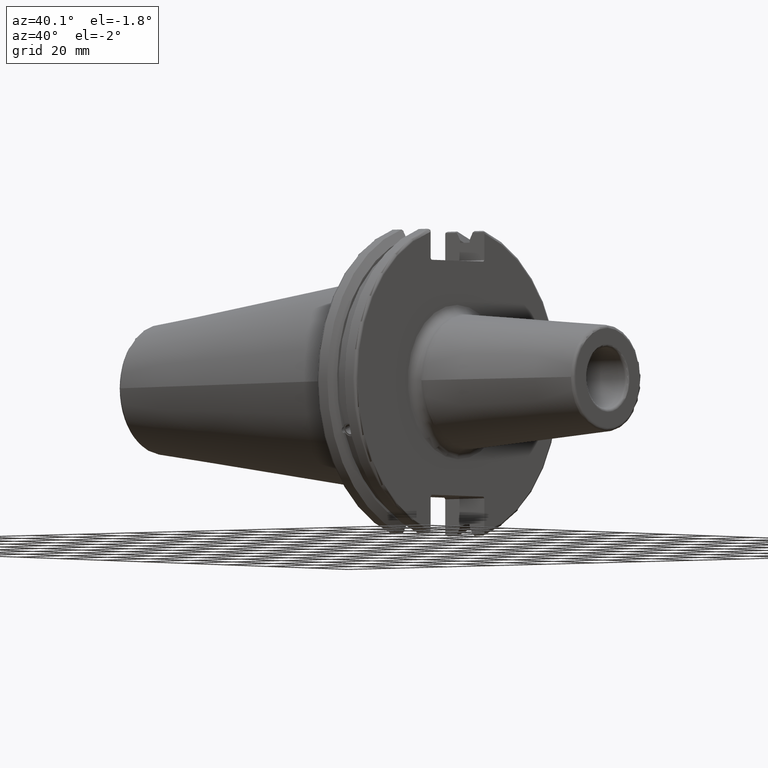
[diagram: clean part render]
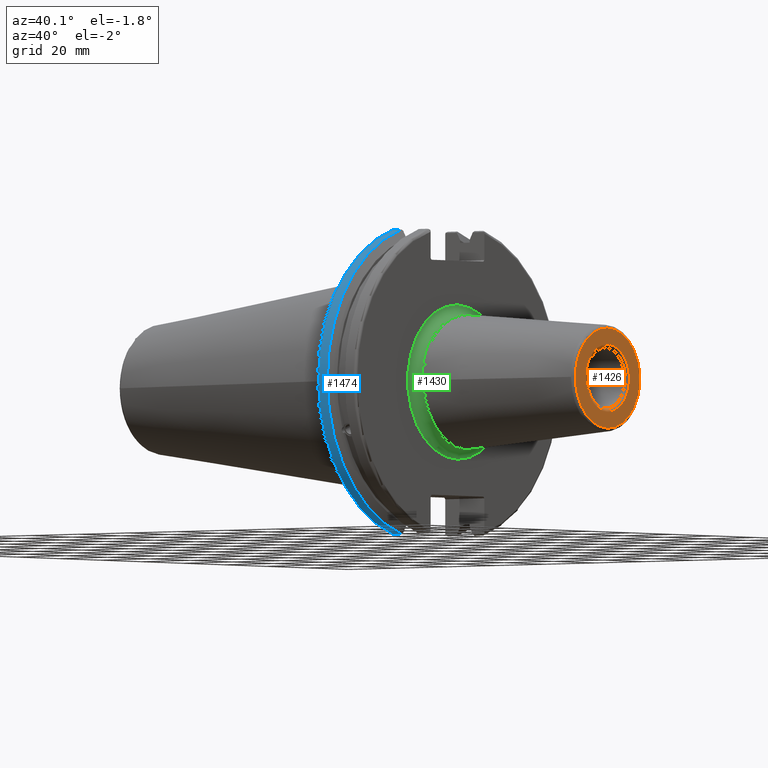
[diagram: same view with three faces highlighted in distinct colors, each labeled with its STEP entity id]
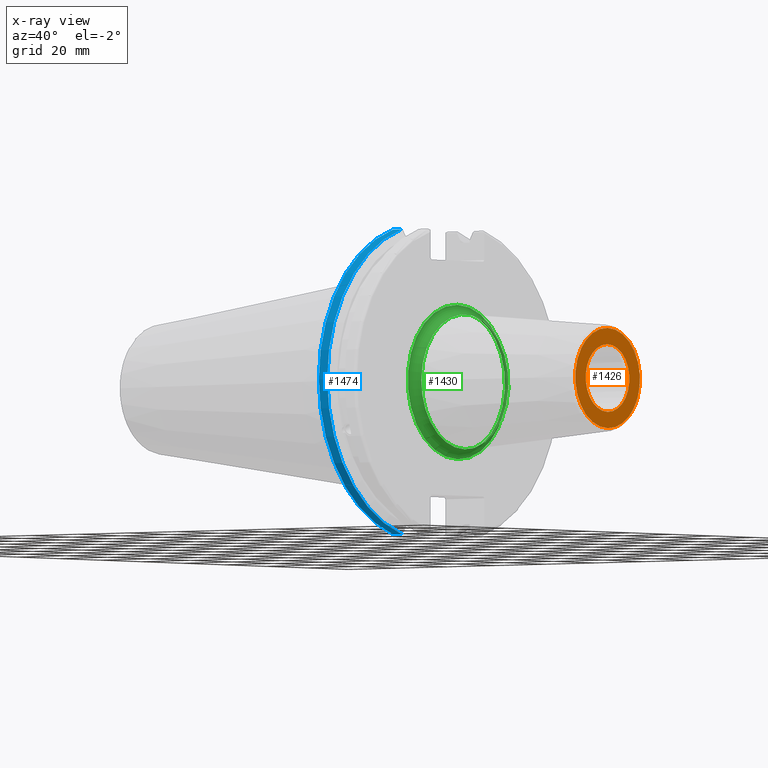
[diagram: x-ray of the same camera — body ghosted, the three highlighted faces saturated]
A machine part, auxiliary view with three faces highlighted in distinct colors.
The next image is the same camera in x-ray (body ghosted, the three faces saturated) — at least one of them is partly hidden behind the body in this view.
Their STEP definitions:

[orange] entity #1426 — the highlighted planar face has unit normal (1, 0, 0).
#289=FACE_BOUND('',#432,.T.);
#309=PLANE('',#1537);
#347=FACE_OUTER_BOUND('',#431,.T.);
#431=EDGE_LOOP('',(#981));
#432=EDGE_LOOP('',(#982));
#537=CIRCLE('',#1536,10.525);
#538=CIRCLE('',#1538,15.5756095083418);
#610=VERTEX_POINT('',#2110);
#611=VERTEX_POINT('',#2114);
#759=EDGE_CURVE('',#610,#610,#537,.T.);
#760=EDGE_CURVE('',#611,#611,#538,.T.);
#981=ORIENTED_EDGE('',*,*,#760,.F.);
#982=ORIENTED_EDGE('',*,*,#759,.F.);
#1426=ADVANCED_FACE('',(#347,#289),#309,.T.);
#1536=AXIS2_PLACEMENT_3D('',#2112,#1702,#1703);
#1537=AXIS2_PLACEMENT_3D('',#2113,#1704,#1705);
#1538=AXIS2_PLACEMENT_3D('',#2115,#1706,#1707);
#1702=DIRECTION('center_axis',(1.,0.,0.));
#1703=DIRECTION('ref_axis',(0.,-1.,1.83697019872103E-16));
#1704=DIRECTION('center_axis',(1.,0.,0.));
#1705=DIRECTION('ref_axis',(0.,0.,-1.));
#1706=DIRECTION('center_axis',(-1.,0.,0.));
#1707=DIRECTION('ref_axis',(0.,-1.,1.83697019872103E-16));
#2110=CARTESIAN_POINT('',(80.,-1.28894075610259E-15,10.525));
#2112=CARTESIAN_POINT('Origin',(80.,0.,0.));
#2113=CARTESIAN_POINT('Origin',(80.,9.525,0.));
#2114=CARTESIAN_POINT('',(80.,-1.90746203291599E-15,15.5756095083418));
#2115=CARTESIAN_POINT('Origin',(80.,0.,0.));

[blue] entity #1474 — the highlighted cylindrical surface (partial cylindrical patch) has radius 49.2125 mm, axis along (1, 0, 0).
#150=LINE('',#2899,#240);
#151=LINE('',#2905,#241);
#240=VECTOR('',#1973,10.);
#241=VECTOR('',#1976,10.);
#281=CYLINDRICAL_SURFACE('',#1638,49.2125);
#395=FACE_OUTER_BOUND('',#496,.T.);
#496=EDGE_LOOP('',(#1259,#1260,#1261,#1262));
#588=CIRCLE('',#1636,49.2125);
#589=CIRCLE('',#1639,49.2125);
#734=VERTEX_POINT('',#2878);
#735=VERTEX_POINT('',#2887);
#736=VERTEX_POINT('',#2898);
#737=VERTEX_POINT('',#2904);
#925=EDGE_CURVE('',#734,#735,#588,.T.);
#927=EDGE_CURVE('',#735,#736,#150,.T.);
#929=EDGE_CURVE('',#737,#734,#151,.T.);
#930=EDGE_CURVE('',#736,#737,#589,.T.);
#1259=ORIENTED_EDGE('',*,*,#925,.F.);
#1260=ORIENTED_EDGE('',*,*,#929,.F.);
#1261=ORIENTED_EDGE('',*,*,#930,.F.);
#1262=ORIENTED_EDGE('',*,*,#927,.F.);
#1474=ADVANCED_FACE('',(#395),#281,.T.);
#1636=AXIS2_PLACEMENT_3D('',#2888,#1969,#1970);
#1638=AXIS2_PLACEMENT_3D('',#2903,#1974,#1975);
#1639=AXIS2_PLACEMENT_3D('',#2906,#1977,#1978);
#1969=DIRECTION('center_axis',(-1.,0.,0.));
#1970=DIRECTION('ref_axis',(0.,-1.,1.60812264967664E-16));
#1973=DIRECTION('',(1.,0.,0.));
#1974=DIRECTION('center_axis',(1.,0.,0.));
#1975=DIRECTION('ref_axis',(0.,-1.,1.22464679914735E-16));
#1976=DIRECTION('',(-1.,0.,0.));
#1977=DIRECTION('center_axis',(1.,0.,0.));
#1978=DIRECTION('ref_axis',(0.,0.,-1.));
#2878=CARTESIAN_POINT('',(4.175,-13.4317035994433,-47.3440544806494));
#2887=CARTESIAN_POINT('',(4.175,-13.4317035994433,47.3440544806494));
#2888=CARTESIAN_POINT('Origin',(4.175,0.,0.));
#2898=CARTESIAN_POINT('',(7.60799096595127,-13.4317035994433,47.3440544806494));
#2899=CARTESIAN_POINT('',(5.39149548297563,-13.4317035994433,47.3440544806494));
#2903=CARTESIAN_POINT('Origin',(5.39149548297563,0.,0.));
#2904=CARTESIAN_POINT('',(7.60799096595127,-13.4317035994433,-47.3440544806494));
#2905=CARTESIAN_POINT('',(5.39149548297563,-13.4317035994433,-47.3440544806494));
#2906=CARTESIAN_POINT('Origin',(7.60799096595127,0.,0.));

[green] entity #1430 — the highlighted toroidal blend (fillet) surface has major radius 24 mm and minor (blend) radius 3 mm.
#351=FACE_OUTER_BOUND('',#436,.T.);
#436=EDGE_LOOP('',(#998,#999,#1000,#1001,#1002));
#544=CIRCLE('',#1548,21.);
#545=CIRCLE('',#1549,3.);
#546=CIRCLE('',#1550,24.);
#547=CIRCLE('',#1551,21.);
#616=VERTEX_POINT('',#2131);
#617=VERTEX_POINT('',#2132);
#618=VERTEX_POINT('',#2134);
#768=EDGE_CURVE('',#616,#617,#544,.T.);
#769=EDGE_CURVE('',#617,#618,#545,.T.);
#770=EDGE_CURVE('',#618,#618,#546,.T.);
#771=EDGE_CURVE('',#617,#616,#547,.T.);
#998=ORIENTED_EDGE('',*,*,#768,.T.);
#999=ORIENTED_EDGE('',*,*,#769,.T.);
#1000=ORIENTED_EDGE('',*,*,#770,.T.);
#1001=ORIENTED_EDGE('',*,*,#769,.F.);
#1002=ORIENTED_EDGE('',*,*,#771,.T.);
#1418=TOROIDAL_SURFACE('',#1547,24.,3.);
#1430=ADVANCED_FACE('',(#351),#1418,.F.);
#1547=AXIS2_PLACEMENT_3D('',#2130,#1726,#1727);
#1548=AXIS2_PLACEMENT_3D('',#2133,#1728,#1729);
#1549=AXIS2_PLACEMENT_3D('',#2135,#1730,#1731);
#1550=AXIS2_PLACEMENT_3D('',#2136,#1732,#1733);
#1551=AXIS2_PLACEMENT_3D('',#2137,#1734,#1735);
#1726=DIRECTION('center_axis',(-1.,0.,0.));
#1727=DIRECTION('ref_axis',(0.,0.,1.));
#1728=DIRECTION('center_axis',(-1.,0.,0.));
#1729=DIRECTION('ref_axis',(0.,-1.,-1.22464679914735E-16));
#1730=DIRECTION('center_axis',(0.,-1.,1.22464679914735E-16));
#1731=DIRECTION('ref_axis',(0.,-1.22464679914735E-16,-1.));
#1732=DIRECTION('center_axis',(1.,0.,0.));
#1733=DIRECTION('ref_axis',(0.,-1.,-1.22464679914735E-16));
#1734=DIRECTION('center_axis',(-1.,0.,0.));
#1735=DIRECTION('ref_axis',(0.,-1.,-1.22464679914735E-16));
#2130=CARTESIAN_POINT('Origin',(22.05,0.,0.));
#2131=CARTESIAN_POINT('',(22.05,-21.,-2.57175827820944E-15));
#2132=CARTESIAN_POINT('',(22.05,-2.57175827820944E-15,-21.));
#2133=CARTESIAN_POINT('Origin',(22.05,0.,0.));
#2134=CARTESIAN_POINT('',(19.05,-2.93915231795365E-15,-24.));
#2135=CARTESIAN_POINT('Origin',(22.05,-2.93915231795365E-15,-24.));
#2136=CARTESIAN_POINT('Origin',(19.05,0.,0.));
#2137=CARTESIAN_POINT('Origin',(22.05,0.,0.));